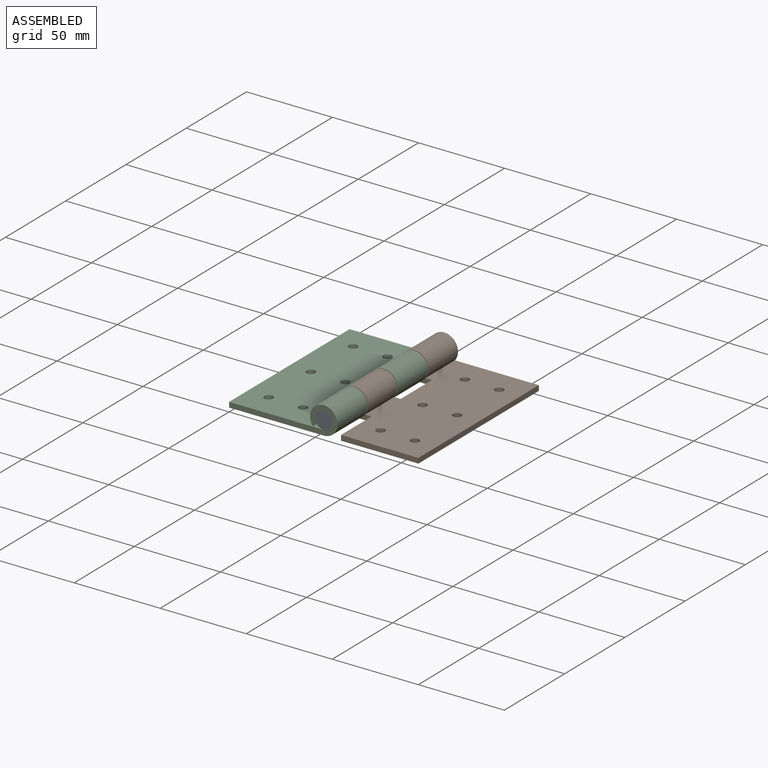
[diagram: assembled view]
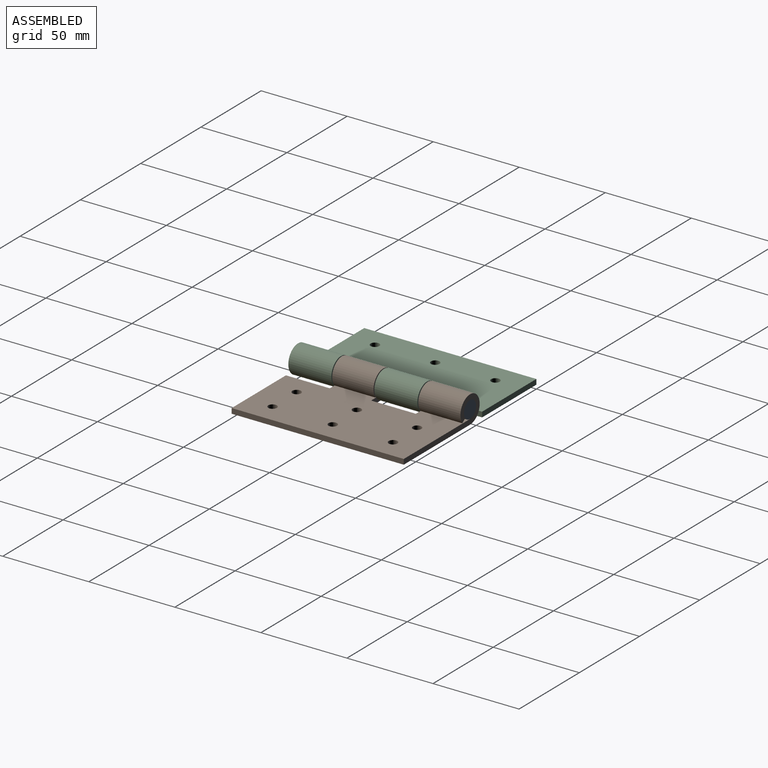
[diagram: assembled view, second angle]
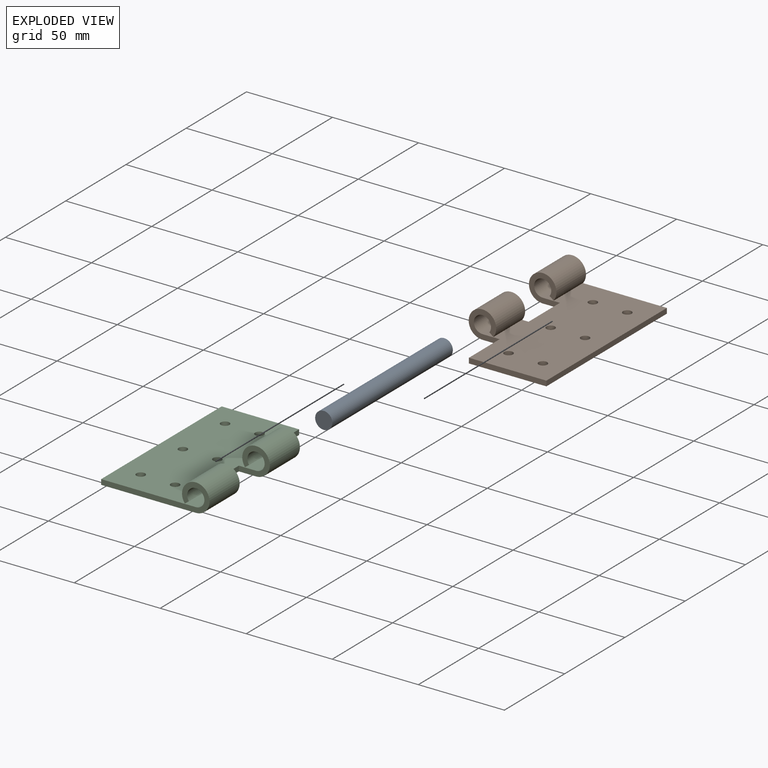
[diagram: exploded view]
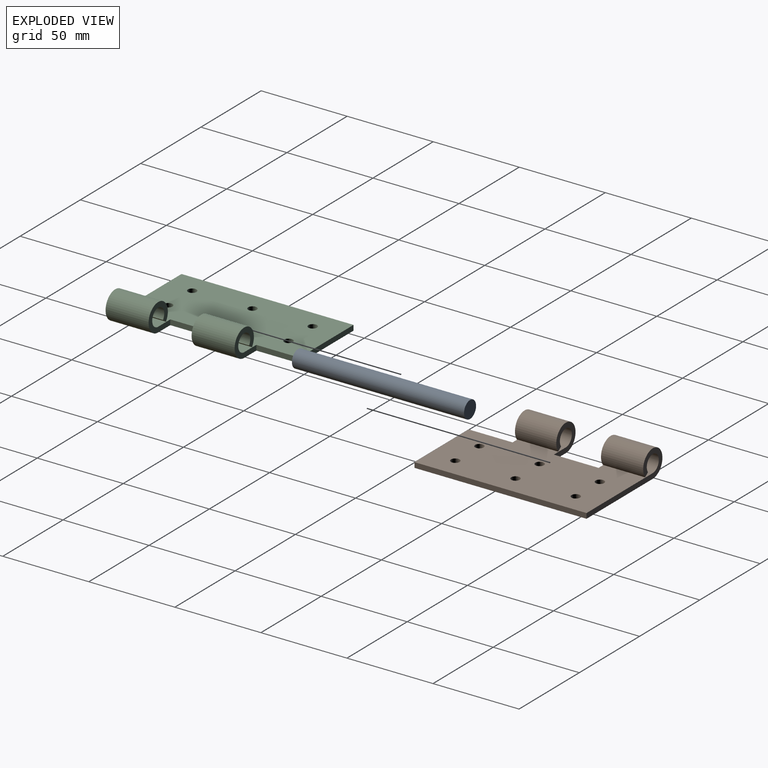
[diagram: exploded view, second angle]
ASSEMBLY  parts=3 mates=2
PART A: 3 faces, bbox 10x100x10 mm
  f0: plane 10x10mm, normal (0,1,0), area 78.5mm2, adj f1
  f1: cylinder r=5mm len=100mm, axis (0,-1,0), area 3141.6mm2, adj f0,f2
  f2: plane 10x10mm, normal (0,-1,0), area 78.5mm2, adj f1
PART B: 22 faces, bbox 63x100x16 mm
  f0: plane 100x55mm, normal (0,0,-1), area 4867.2mm2, adj f1,f5,f6,f9,f10,f11,f12,f13
  f1: cylinder r=8mm len=24mm, axis (0,-1,0), area 1028.3mm2, adj f0,f2,f11,f14
  f2: plane 24x2.4mm, normal (-0.6,0,-0.8), area 72mm2, adj f1,f3,f11,f14
  f3: cylinder r=5mm len=24mm, axis (0,-1,0), area 642.7mm2, adj f2,f4,f11,f14
  f4: plane 100x55mm, normal (0,0,1), area 4867.2mm2, adj f3,f5,f8,f9,f10,f11,f12,f13
  f5: plane 100x3mm, normal (1,0,0), area 300mm2, adj f0,f4,f9,f10
  f6: cylinder r=8mm len=24.5mm, axis (0,-1,0), area 1049.8mm2, adj f0,f7,f9,f13
  f7: plane 24.5x2.4mm, normal (-0.6,0,-0.8), area 73.5mm2, adj f6,f8,f9,f13
  f8: cylinder r=5mm len=24.5mm, axis (0,-1,0), area 656.1mm2, adj f4,f7,f9,f13
  f9: plane 63x16mm, normal (0,1,0), area 269.4mm2, adj f0,f4,f5,f6,f7,f8
  f10: plane 45x3mm, normal (0,-1,0), area 135mm2, adj f0,f4,f5,f12
  f11: plane 18x16mm, normal (0,-1,0), area 134.4mm2, adj f0,f1,f2,f3,f4,f12
  f12: plane 25.5x3mm, normal (-1,0,0), area 76.5mm2, adj f0,f4,f10,f11
  f13: plane 18x16mm, normal (0,-1,0), area 134.4mm2, adj f0,f4,f6,f7,f8,f15
  f14: plane 18x16mm, normal (0,1,0), area 134.4mm2, adj f0,f1,f2,f3,f4,f15
  f15: plane 26x3mm, normal (-1,0,0), area 78mm2, adj f0,f4,f13,f14
  f16: cylinder r=2.5mm len=5mm, axis (0,0,1), area 47.1mm2, adj f0,f4
  f17: cylinder r=2.5mm len=5mm, axis (0,0,1), area 47.1mm2, adj f0,f4
  f18: cylinder r=2.5mm len=5mm, axis (0,0,1), area 47.1mm2, adj f0,f4
  f19: cylinder r=2.5mm len=5mm, axis (0,0,1), area 47.1mm2, adj f0,f4
  f20: cylinder r=2.5mm len=5mm, axis (0,0,1), area 47.1mm2, adj f0,f4
  f21: cylinder r=2.5mm len=5mm, axis (0,0,1), area 47.1mm2, adj f0,f4
PART C: 22 faces, bbox 63x100x16 mm
  f0: plane 100x55mm, normal (0,0,-1), area 4882.2mm2, adj f1,f5,f6,f9,f10,f11,f12,f13
  f1: cylinder r=8mm len=25mm, axis (0,1,0), area 1071.2mm2, adj f0,f2,f11,f14
  f2: plane 25x2.4mm, normal (0.6,0,-0.8), area 75mm2, adj f1,f3,f11,f14
  f3: cylinder r=5mm len=25mm, axis (0,1,0), area 669.5mm2, adj f2,f4,f11,f14
  f4: plane 100x55mm, normal (0,0,1), area 4882.2mm2, adj f3,f5,f8,f9,f10,f11,f12,f13
  f5: plane 100x3mm, normal (-1,0,0), area 300mm2, adj f0,f4,f9,f10
  f6: cylinder r=8mm len=25mm, axis (0,1,0), area 1071.2mm2, adj f0,f7,f9,f13
  f7: plane 25x2.4mm, normal (0.6,0,-0.8), area 75mm2, adj f6,f8,f9,f13
  f8: cylinder r=5mm len=25mm, axis (0,1,0), area 669.5mm2, adj f4,f7,f9,f13
  f9: plane 63x16mm, normal (0,-1,0), area 269.4mm2, adj f0,f4,f5,f6,f7,f8
  f10: plane 45x3mm, normal (0,1,0), area 135mm2, adj f0,f4,f5,f12
  f11: plane 18x16mm, normal (0,1,0), area 134.4mm2, adj f0,f1,f2,f3,f4,f12
  f12: plane 25x3mm, normal (1,0,0), area 75mm2, adj f0,f4,f10,f11
  f13: plane 18x16mm, normal (0,1,0), area 134.4mm2, adj f0,f4,f6,f7,f8,f15
  f14: plane 18x16mm, normal (0,-1,0), area 134.4mm2, adj f0,f1,f2,f3,f4,f15
  f15: plane 25x3mm, normal (1,0,0), area 75mm2, adj f0,f4,f13,f14
  f16: cylinder r=2.5mm len=5mm, axis (0,0,1), area 47.1mm2, adj f0,f4
  f17: cylinder r=2.5mm len=5mm, axis (0,0,1), area 47.1mm2, adj f0,f4
  f18: cylinder r=2.5mm len=5mm, axis (0,0,1), area 47.1mm2, adj f0,f4
  f19: cylinder r=2.5mm len=5mm, axis (0,0,1), area 47.1mm2, adj f0,f4
  f20: cylinder r=2.5mm len=5mm, axis (0,0,1), area 47.1mm2, adj f0,f4
  f21: cylinder r=2.5mm len=5mm, axis (0,0,1), area 47.1mm2, adj f0,f4
PLACE A at identity
PLACE B t=(110,100,0)mm
PLACE C at identity fixed
MATE revolute A.f1 <-> B.f1  axis (0,1,0) through (55,50,5)mm
MATE fastened A.f1 <-> C.f1  axis (0,-1,0) through (55,-50,5)mm
